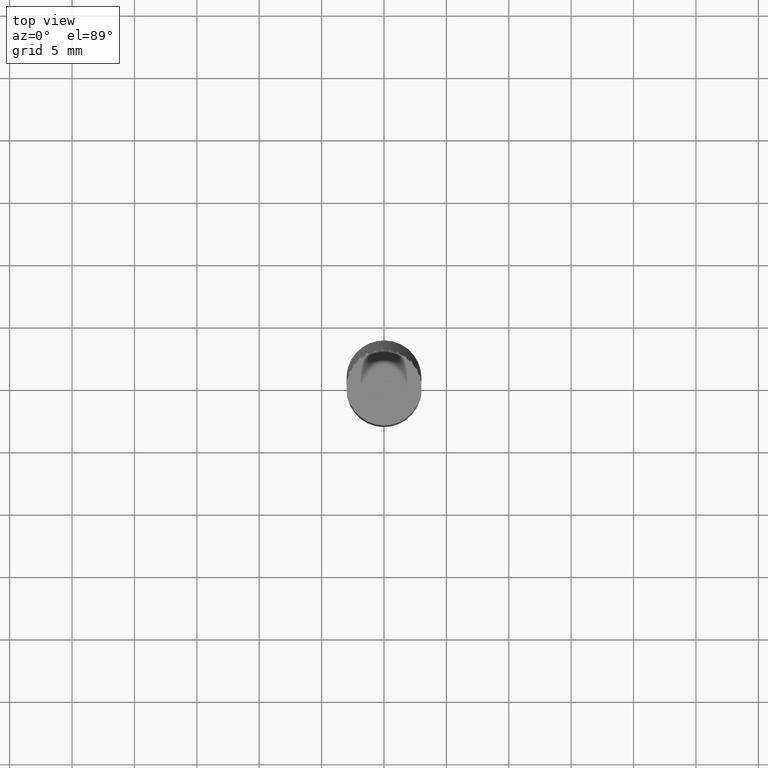
[diagram: clean part render]
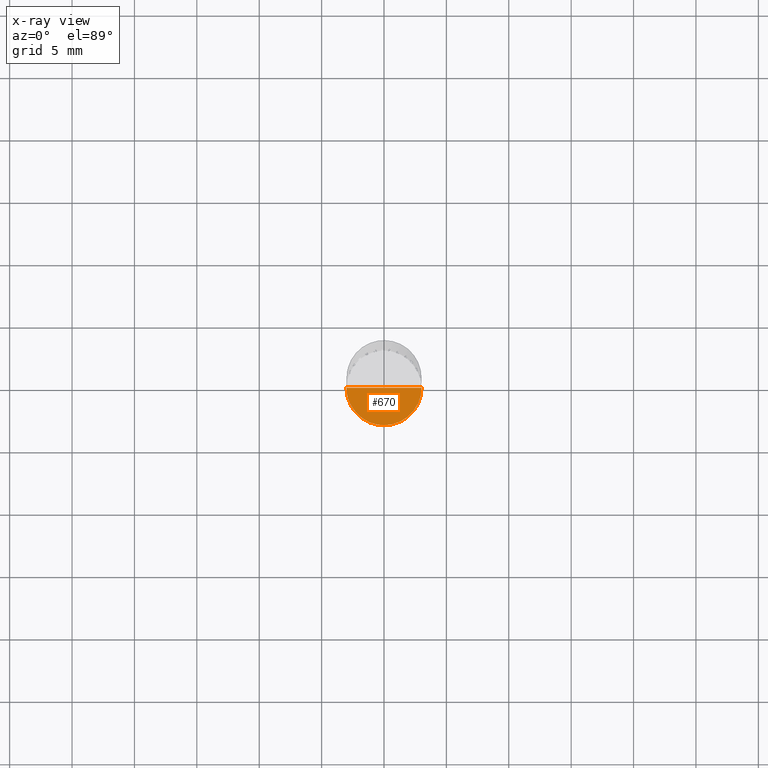
[diagram: x-ray — body ghosted, one internal face saturated and labeled with its STEP entity id]
A machine part, top view, then the same camera in x-ray: the body is ghosted and one INTERNAL B-rep face — a face not visible from any outside direction — is saturated and labeled: STEP entity #670.
In plain terms, the highlighted face is a freeform B-spline surface patch.
Its self-contained STEP definition (entity closure, byte-faithful):
#521=CARTESIAN_POINT('',(3.0,0.0,-5.0));
#525=CARTESIAN_POINT('',(-3.0,0.0,-5.0));
#526=CARTESIAN_POINT('',(0.0,0.0,-5.0));
#533=CARTESIAN_POINT('',(-3.0,-3.0,-5.0));
#534=CARTESIAN_POINT('',(0.0,-3.0,-5.0));
#535=CARTESIAN_POINT('',(3.0,-3.0,-5.0));
#655=(
BOUNDED_SURFACE()
B_SPLINE_SURFACE(1,2,(
(#525,#533,#534,#535,#521),
(#526,#526,#526,#526,#526)
), .UNSPECIFIED.,.F.,.F.,.F.)
B_SPLINE_SURFACE_WITH_KNOTS((2,2),(3,2,3),(
0.0,1.0),(
0.0,0.5,1.0), .UNSPECIFIED.)
GEOMETRIC_REPRESENTATION_ITEM()
RATIONAL_B_SPLINE_SURFACE(((1.0,0.707106781187,1.0,0.707106781187,1.0),
(1.0,0.707106781187,1.0,0.707106781187,1.0)
))
REPRESENTATION_ITEM('')
SURFACE()
);
#656=(
BOUNDED_CURVE()
B_SPLINE_CURVE(2,(#521,#535,#534,#533,#525),.UNSPECIFIED.,.F.,.F.)
B_SPLINE_CURVE_WITH_KNOTS((3,2,3),
(0.0,0.5,1.0),.UNSPECIFIED.)
CURVE()
GEOMETRIC_REPRESENTATION_ITEM()
RATIONAL_B_SPLINE_CURVE((1.0,0.707106781187,1.0,0.707106781187,1.0))
REPRESENTATION_ITEM('')
);
#657=(
BOUNDED_CURVE()
B_SPLINE_CURVE(1,(#525,#526),.UNSPECIFIED.,.F.,.F.)
B_SPLINE_CURVE_WITH_KNOTS((2,2),
(0.0,1.0),.UNSPECIFIED.)
CURVE()
GEOMETRIC_REPRESENTATION_ITEM()
RATIONAL_B_SPLINE_CURVE((1.0,1.0))
REPRESENTATION_ITEM('')
);
#658=(
BOUNDED_CURVE()
B_SPLINE_CURVE(1,(#526,#521),.UNSPECIFIED.,.F.,.F.)
B_SPLINE_CURVE_WITH_KNOTS((2,2),
(0.0,1.0),.UNSPECIFIED.)
CURVE()
GEOMETRIC_REPRESENTATION_ITEM()
RATIONAL_B_SPLINE_CURVE((1.0,1.0))
REPRESENTATION_ITEM('')
);
#659=VERTEX_POINT('',#521);
#660=VERTEX_POINT('',#525);
#661=VERTEX_POINT('',#526);
#662=EDGE_CURVE('',#659,#660,#656,.T.);
#663=EDGE_CURVE('',#660,#661,#657,.T.);
#664=EDGE_CURVE('',#661,#659,#658,.T.);
#665=ORIENTED_EDGE('',*,*,#662,.T.);
#666=ORIENTED_EDGE('',*,*,#663,.T.);
#667=ORIENTED_EDGE('',*,*,#664,.T.);
#668=EDGE_LOOP('',(#665,#666,#667));
#669=FACE_OUTER_BOUND('',#668,.T.);
#670=ADVANCED_FACE('',(#669),#655,.T.);